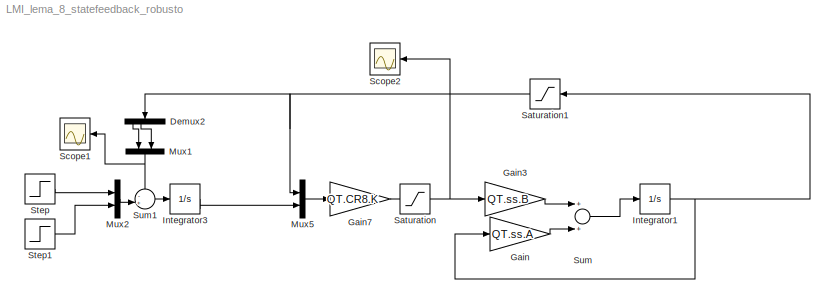
MODEL LMI_lema_8_statefeedback_robusto
KIND model
BLOCK [Demux] Demux2
  DisplayOption = bar
  Ports = [1, 4]
  SID = 140
BLOCK [Gain] Gain
  Gain = QT.ss.A
  Multiplication = Matrix(K*u)
  OutDataTypeStr = Inherit: Inherit via internal rule
  ParamDataTypeStr = Inherit: Inherit via internal rule
  SID = 141
  SaturateOnIntegerOverflow = off
BLOCK [Gain] Gain3
  Gain = QT.ss.B
  Multiplication = Matrix(K*u)
  OutDataTypeStr = Inherit: Inherit via internal rule
  ParamDataTypeStr = Inherit: Inherit via internal rule
  SID = 142
  SaturateOnIntegerOverflow = off
BLOCK [Gain] Gain7
  Gain = QT.CR8.K
  Multiplication = Matrix(K*u)
  OutDataTypeStr = Inherit: Inherit via internal rule
  ParamDataTypeStr = Inherit: Inherit via internal rule
  SID = 143
  SaturateOnIntegerOverflow = off
BLOCK [Integrator] Integrator1
  Ports = [1, 1]
  SID = 144
BLOCK [Integrator] Integrator3
  Ports = [1, 1]
  SID = 145
BLOCK [Mux] Mux1
  DisplayOption = bar
  Inputs = 2
  Ports = [2, 1]
  SID = 146
BLOCK [Mux] Mux2
  DisplayOption = bar
  Inputs = 2
  Ports = [2, 1]
  SID = 147
BLOCK [Mux] Mux5
  DisplayOption = bar
  Inputs = 2
  Ports = [2, 1]
  SID = 148
BLOCK [Saturate] Saturation
  InputPortMap = u0
  LowerLimit = -1.5
  Ports = [1, 1]
  SID = 155
  UpperLimit = 1.5
BLOCK [Saturate] Saturation1
  InputPortMap = u0
  LowerLimit = 0
  Ports = [1, 1]
  SID = 156
  UpperLimit = 20
BLOCK [Scope] Scope1
  DataFormat = StructureWithTime
  Floating = off
  NumInputPorts = 1
  Ports = [1]
  SID = 149
  SampleTime = 1
  TimeRange = 100
  YMax = 1
  YMin = 0
BLOCK [Scope] Scope2
  DataFormat = StructureWithTime
  Floating = off
  NumInputPorts = 1
  Ports = [1]
  SID = 154
  SampleTime = 1
  SaveName = ScopeData1
  TimeRange = 100
  YMax = 1
  YMin = 0
BLOCK [Step] Step
  SID = 150
  SampleTime = 0
BLOCK [Step] Step1
  After = 2
  SID = 151
  SampleTime = 0
  Time = 10
BLOCK [Sum] Sum
  InputSameDT = off
  OutDataTypeStr = Inherit: Inherit via internal rule
  Ports = [2, 1]
  SID = 152
  SaturateOnIntegerOverflow = off
BLOCK [Sum] Sum1
  IconShape = round
  InputSameDT = off
  Inputs = -+|
  OutDataTypeStr = Inherit: Inherit via internal rule
  Ports = [2, 1]
  SID = 153
  SaturateOnIntegerOverflow = off
LINE Demux2:1 -> Mux1:1
LINE Demux2:2 -> Mux1:2
LINE Gain3:1 -> Sum:1
NET Gain7:1 -> Gain3:1, Scope2:1
LINE Gain:1 -> Sum:2
NET Integrator1:1 -> Gain:1, Saturation1:1
LINE Integrator3:1 -> Mux5:2
NET Mux1:1 -> Scope1:1, Sum1:1
LINE Mux2:1 -> Sum1:2
LINE Mux5:1 -> Gain7:1
NET Saturation1:1 -> Demux2:1, Mux5:1
LINE Step1:1 -> Mux2:2
LINE Step:1 -> Mux2:1
LINE Sum1:1 -> Integrator3:1
LINE Sum:1 -> Integrator1:1
note: NET lines group one-source signal fan-out (src -> all destinations, sorted); 1:1 wires keep LINE
